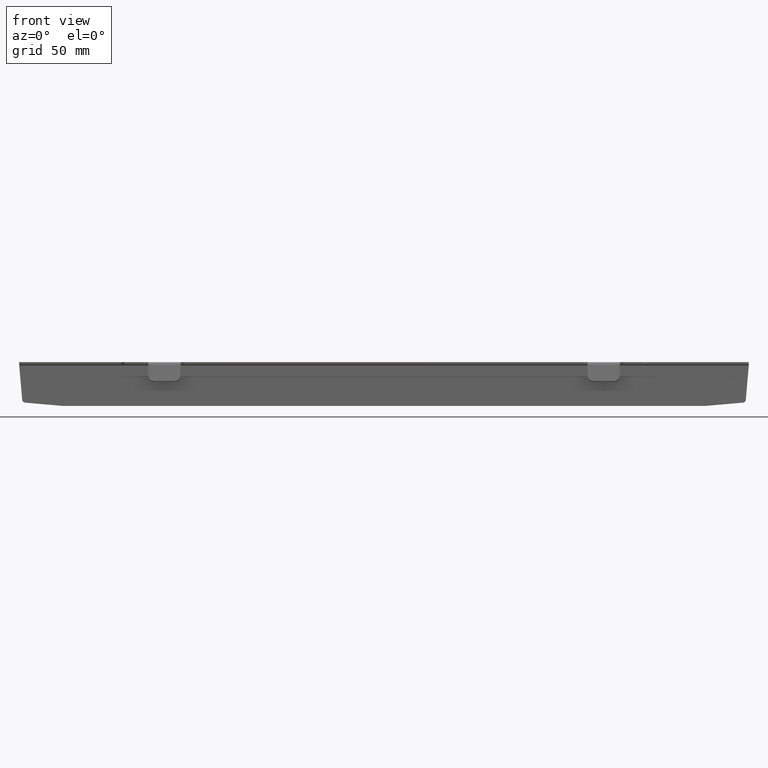
[diagram: clean part render]
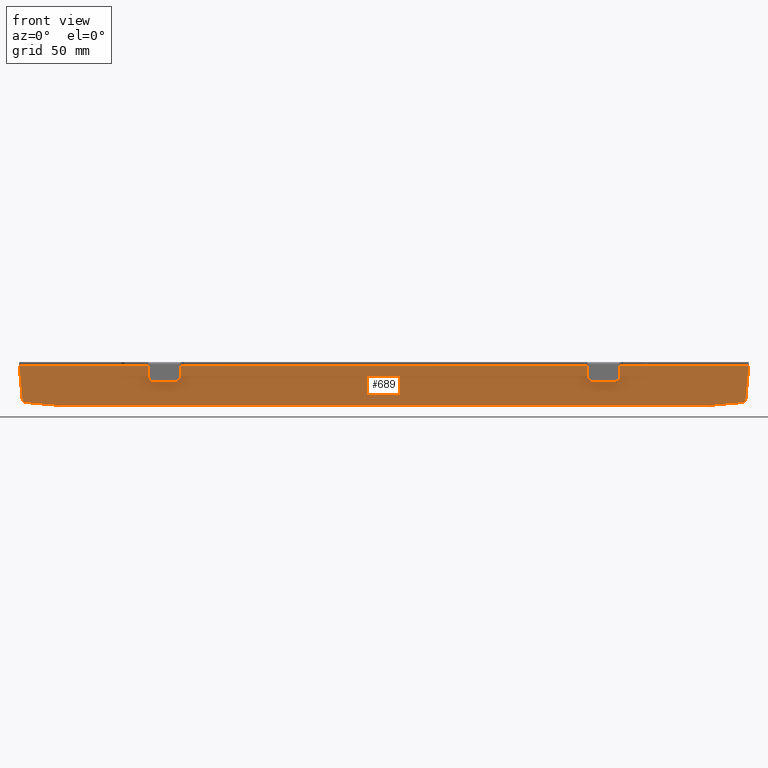
[diagram: same view with one face highlighted and labeled with its STEP entity id]
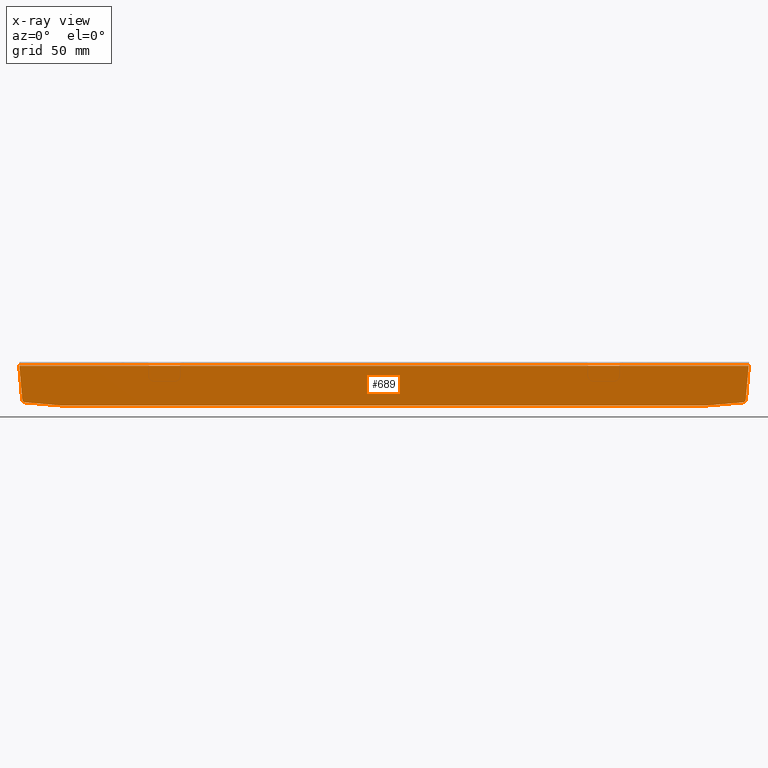
[diagram: x-ray of the same camera — body ghosted, the highlighted face saturated]
A machine part, front view. The second image highlights one B-rep face of the part: STEP entity #689.
The next image is the same camera in x-ray: the body ghosted, the highlighted face saturated — about 0% of this face is hidden behind the body in this view.
In plain terms, the highlighted planar face has unit normal (0, -0.9962, 0.0872).
Its self-contained STEP definition (entity closure, byte-faithful):
#45 = AXIS2_PLACEMENT_3D ( 'NONE', #760, #1499, #792 ) ;
#46 = DIRECTION ( 'NONE',  ( 0.0000000000000000000, -0.9961946980917457700, 0.08715574274765478000 ) ) ;
#83 = ORIENTED_EDGE ( 'NONE', *, *, #229, .F. ) ;
#114 = AXIS2_PLACEMENT_3D ( 'NONE', #1699, #2438, #2275 ) ;
#158 = FACE_OUTER_BOUND ( 'NONE', #2083, .T. ) ;
#175 = DIRECTION ( 'NONE',  ( 1.000000000000000000, 0.0000000000000000000, 0.0000000000000000000 ) ) ;
#200 = CARTESIAN_POINT ( 'NONE',  ( 247.3447305108595100, 10.81956388646631400, -22.57363271397083100 ) ) ;
#229 = EDGE_CURVE ( 'NONE', #1111, #364, #1479, .T. ) ;
#232 = CARTESIAN_POINT ( 'NONE',  ( -245.2519564112343500, 10.38745706878221300, -27.51263624048008800 ) ) ;
#272 = CIRCLE ( 'NONE', #1360, 2.000000000000000900 ) ;
#273 = CARTESIAN_POINT ( 'NONE',  ( 0.0000000000000000000, 12.70560194923043100, -1.016119011577475600 ) ) ;
#321 = CARTESIAN_POINT ( 'NONE',  ( 219.0126781141829600, 10.18804475421434800, -29.79192942580558800 ) ) ;
#333 = AXIS2_PLACEMENT_3D ( 'NONE', #2388, #2376, #1254 ) ;
#364 = VERTEX_POINT ( 'NONE', #1140 ) ;
#383 = ORIENTED_EDGE ( 'NONE', *, *, #2038, .F. ) ;
#390 = VERTEX_POINT ( 'NONE', #1894 ) ;
#414 = CARTESIAN_POINT ( 'NONE',  ( -219.0126781141832700, 10.18804475421434800, -29.79192942580558800 ) ) ;
#421 = CIRCLE ( 'NONE', #114, 2.000000000000000900 ) ;
#446 = ORIENTED_EDGE ( 'NONE', *, *, #1942, .T. ) ;
#461 = DIRECTION ( 'NONE',  ( 0.08715574274765834600, -0.08682408883346177900, -0.9924038765061041800 ) ) ;
#477 = ORIENTED_EDGE ( 'NONE', *, *, #877, .T. ) ;
#486 = VERTEX_POINT ( 'NONE', #232 ) ;
#487 = LINE ( 'NONE', #1408, #1384 ) ;
#504 = CARTESIAN_POINT ( 'NONE',  ( -249.0999999999999900, 10.18804475421434800, -29.79192942580558800 ) ) ;
#666 = ORIENTED_EDGE ( 'NONE', *, *, #1878, .T. ) ;
#689 = ADVANCED_FACE ( 'NONE', ( #158 ), #1981, .T. ) ;
#720 = CARTESIAN_POINT ( 'NONE',  ( 249.1000000000001100, 12.56815404527021900, -2.587155742747651500 ) ) ;
#736 = AXIS2_PLACEMENT_3D ( 'NONE', #273, #1581, #1759 ) ;
#760 = CARTESIAN_POINT ( 'NONE',  ( 219.0126781141829600, 10.36235623970965700, -27.79954002962209400 ) ) ;
#781 = CARTESIAN_POINT ( 'NONE',  ( -249.0999999999999900, 12.56815404527022100, -2.587155742747653300 ) ) ;
#792 = DIRECTION ( 'NONE',  ( 0.0000000000000000000, -0.08715574274765434900, -0.9961946980917459900 ) ) ;
#821 = ORIENTED_EDGE ( 'NONE', *, *, #1154, .T. ) ;
#858 = CARTESIAN_POINT ( 'NONE',  ( -4.172287787330473600, 8.549190976579046400, -48.52411382075580100 ) ) ;
#877 = EDGE_CURVE ( 'NONE', #1124, #988, #953, .T. ) ;
#880 = VECTOR ( 'NONE', #1514, 1000.000000000000200 ) ;
#948 = VERTEX_POINT ( 'NONE', #1490 ) ;
#953 = CIRCLE ( 'NONE', #45, 2.000000000000000900 ) ;
#988 = VERTEX_POINT ( 'NONE', #1306 ) ;
#1032 = EDGE_CURVE ( 'NONE', #948, #364, #272, .T. ) ;
#1068 = ORIENTED_EDGE ( 'NONE', *, *, #1032, .T. ) ;
#1094 = VERTEX_POINT ( 'NONE', #414 ) ;
#1098 = LINE ( 'NONE', #858, #1950 ) ;
#1102 = VERTEX_POINT ( 'NONE', #2319 ) ;
#1111 = VERTEX_POINT ( 'NONE', #720 ) ;
#1124 = VERTEX_POINT ( 'NONE', #321 ) ;
#1140 = CARTESIAN_POINT ( 'NONE',  ( 247.0700343219225800, 10.54591299946134500, -25.70147666513478800 ) ) ;
#1154 = EDGE_CURVE ( 'NONE', #1102, #486, #1590, .T. ) ;
#1165 = CARTESIAN_POINT ( 'NONE',  ( 245.0776449257390900, 10.56110524644913800, -25.52782848746785400 ) ) ;
#1191 = VECTOR ( 'NONE', #1812, 1000.000000000000000 ) ;
#1249 = LINE ( 'NONE', #504, #1191 ) ;
#1254 = DIRECTION ( 'NONE',  ( 0.0000000000000000000, -0.08715574274765434900, -0.9961946980917459900 ) ) ;
#1270 = VECTOR ( 'NONE', #1931, 1000.000000000000100 ) ;
#1305 = CARTESIAN_POINT ( 'NONE',  ( 4.172287787330473600, 8.549190976579046400, -48.52411382075578700 ) ) ;
#1306 = CARTESIAN_POINT ( 'NONE',  ( 219.1869895996782400, 10.18870806204273200, -29.78434778263429900 ) ) ;
#1360 = AXIS2_PLACEMENT_3D ( 'NONE', #1165, #46, #1906 ) ;
#1384 = VECTOR ( 'NONE', #461, 1000.000000000000100 ) ;
#1408 = CARTESIAN_POINT ( 'NONE',  ( -247.3447305108594800, 10.81956388646631600, -22.57363271397083100 ) ) ;
#1433 = ORIENTED_EDGE ( 'NONE', *, *, #1615, .T. ) ;
#1470 = CARTESIAN_POINT ( 'NONE',  ( -249.0999999999999900, 12.56815404527022100, -2.587155742747652800 ) ) ;
#1479 = LINE ( 'NONE', #200, #880 ) ;
#1488 = EDGE_CURVE ( 'NONE', #1710, #1111, #2122, .T. ) ;
#1490 = CARTESIAN_POINT ( 'NONE',  ( 245.2519564112343200, 10.38745706878221300, -27.51263624048006300 ) ) ;
#1499 = DIRECTION ( 'NONE',  ( 0.0000000000000000000, -0.9961946980917457700, 0.08715574274765478000 ) ) ;
#1514 = DIRECTION ( 'NONE',  ( -0.08715574274765833200, -0.08682408883346177900, -0.9924038765061041800 ) ) ;
#1581 = DIRECTION ( 'NONE',  ( 0.0000000000000000000, -0.9961946980917458800, 0.08715574274765479400 ) ) ;
#1590 = CIRCLE ( 'NONE', #333, 2.000000000000000900 ) ;
#1613 = DIRECTION ( 'NONE',  ( 0.9961946980917455500, -0.007596123493895698400, -0.08682408883346547100 ) ) ;
#1615 = EDGE_CURVE ( 'NONE', #390, #1094, #421, .T. ) ;
#1699 = CARTESIAN_POINT ( 'NONE',  ( -219.0126781141832700, 10.36235623970965700, -27.79954002962209400 ) ) ;
#1710 = VERTEX_POINT ( 'NONE', #781 ) ;
#1756 = EDGE_CURVE ( 'NONE', #948, #988, #1833, .T. ) ;
#1759 = DIRECTION ( 'NONE',  ( 0.0000000000000000000, -0.08715574274765479400, -0.9961946980917458800 ) ) ;
#1799 = VECTOR ( 'NONE', #175, 1000.000000000000000 ) ;
#1812 = DIRECTION ( 'NONE',  ( -1.000000000000000000, -0.0000000000000000000, -0.0000000000000000000 ) ) ;
#1833 = LINE ( 'NONE', #1305, #1270 ) ;
#1878 = EDGE_CURVE ( 'NONE', #1710, #1102, #487, .T. ) ;
#1894 = CARTESIAN_POINT ( 'NONE',  ( -219.1869895996786100, 10.18870806204273400, -29.78434778263429500 ) ) ;
#1906 = DIRECTION ( 'NONE',  ( 0.0000000000000000000, -0.08715574274765434900, -0.9961946980917459900 ) ) ;
#1931 = DIRECTION ( 'NONE',  ( -0.9961946980917455500, -0.007596123493895700100, -0.08682408883346548500 ) ) ;
#1942 = EDGE_CURVE ( 'NONE', #486, #390, #1098, .T. ) ;
#1950 = VECTOR ( 'NONE', #1613, 1000.000000000000000 ) ;
#1981 = PLANE ( 'NONE',  #736 ) ;
#2038 = EDGE_CURVE ( 'NONE', #1124, #1094, #1249, .T. ) ;
#2083 = EDGE_LOOP ( 'NONE', ( #666, #821, #446, #1433, #383, #477, #2350, #1068, #83, #2214 ) ) ;
#2122 = LINE ( 'NONE', #1470, #1799 ) ;
#2214 = ORIENTED_EDGE ( 'NONE', *, *, #1488, .F. ) ;
#2275 = DIRECTION ( 'NONE',  ( 0.0000000000000000000, -0.08715574274765434900, -0.9961946980917459900 ) ) ;
#2319 = CARTESIAN_POINT ( 'NONE',  ( -247.0700343219225500, 10.54591299946134500, -25.70147666513480900 ) ) ;
#2350 = ORIENTED_EDGE ( 'NONE', *, *, #1756, .F. ) ;
#2376 = DIRECTION ( 'NONE',  ( 0.0000000000000000000, -0.9961946980917457700, 0.08715574274765478000 ) ) ;
#2388 = CARTESIAN_POINT ( 'NONE',  ( -245.0776449257390700, 10.56110524644913600, -25.52782848746787900 ) ) ;
#2438 = DIRECTION ( 'NONE',  ( 0.0000000000000000000, -0.9961946980917457700, 0.08715574274765478000 ) ) ;